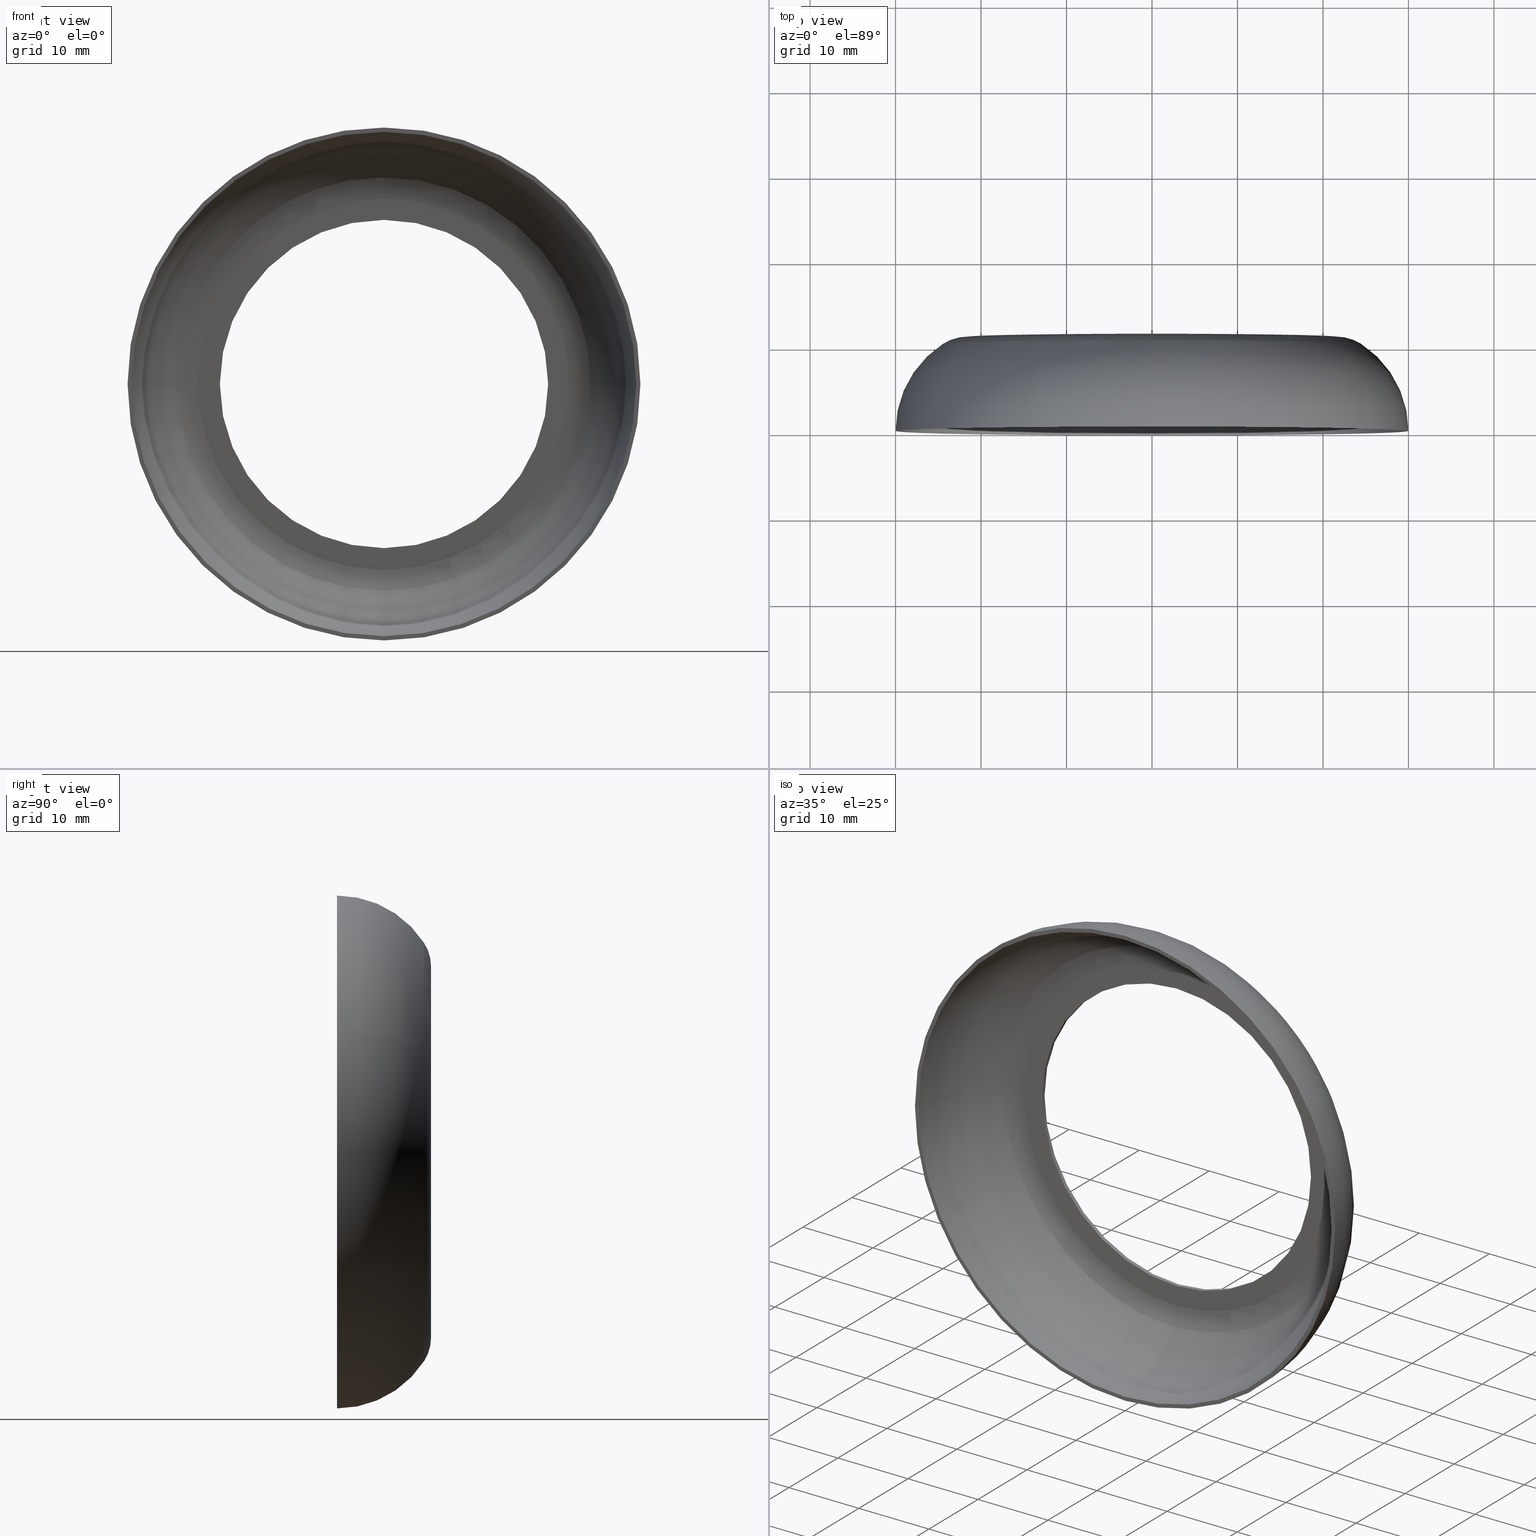
[diagram: canonical four-view strip — front | top / right | iso, engineering-drawing reading convention]
A machine part, canonical four-view strip (front | top / right | iso — engineering-drawing reading convention). The complete STEP part file that produces these views, byte-faithful:
ISO-10303-21;
HEADER;
FILE_DESCRIPTION (( 'STEP AP214' ),
    '1' );
FILE_NAME ('���. KRT506.STEP',
    '2014-06-04T08:05:20',
    ( '' ),
    ( '' ),
    'SwSTEP 2.0',
    'SolidWorks 2014',
    '' );
FILE_SCHEMA (( 'AUTOMOTIVE_DESIGN' ));
ENDSEC;

DATA;
#1 = VERTEX_POINT ( 'NONE', #88 ) ;
#2 = CIRCLE ( 'NONE', #20, 19.19999999999999900 ) ;
#3 = UNCERTAINTY_MEASURE_WITH_UNIT (LENGTH_MEASURE( 1.000000000000000100E-005 ), #101, 'distance_accuracy_value', 'NONE');
#4 = DIRECTION ( 'NONE',  ( 0.0000000000000000000, 0.0000000000000000000, 1.000000000000000000 ) ) ;
#5 = EDGE_CURVE ( 'NONE', #223, #1, #279, .T. ) ;
#6 = CIRCLE ( 'NONE', #294, 12.14285714285714200 ) ;
#7 = AXIS2_PLACEMENT_3D ( 'NONE', #57, #86, #311 ) ;
#8 = CIRCLE ( 'NONE', #284, 24.44569198360740700 ) ;
#9 = CARTESIAN_POINT ( 'NONE',  ( 0.0000000000000000000, 9.779999999999997600, 0.0000000000000000000 ) ) ;
#10 = PRODUCT_DEFINITION ( 'UNKNOWN', '', #36, #327 ) ;
#11 = CARTESIAN_POINT ( 'NONE',  ( 0.0000000000000000000, 0.0000000000000000000, -17.85714285714285800 ) ) ;
#12 = MECHANICAL_DESIGN_GEOMETRIC_PRESENTATION_REPRESENTATION (  '', ( #91 ), #255 ) ;
#13 = ORIENTED_EDGE ( 'NONE', *, *, #395, .T. ) ;
#14 = CARTESIAN_POINT ( 'NONE',  ( 0.0000000000000000000, 0.0000000000000000000, 0.0000000000000000000 ) ) ;
#15 = ORIENTED_EDGE ( 'NONE', *, *, #230, .T. ) ;
#16 = CARTESIAN_POINT ( 'NONE',  ( 0.0000000000000000000, 10.49999999999999800, -21.73275999035729800 ) ) ;
#17 = PRODUCT_CONTEXT ( 'NONE', #74, 'mechanical' ) ;
#18 = CIRCLE ( 'NONE', #26, 29.50000000000000000 ) ;
#19 = CIRCLE ( 'NONE', #387, 21.73275999035729800 ) ;
#20 = AXIS2_PLACEMENT_3D ( 'NONE', #389, #349, #140 ) ;
#21 = DIRECTION ( 'NONE',  ( 0.0000000000000000000, 0.0000000000000000000, -1.000000000000000000 ) ) ;
#22 = DIRECTION ( 'NONE',  ( -0.0000000000000000000, -1.000000000000000000, -0.0000000000000000000 ) ) ;
#23 = ADVANCED_BREP_SHAPE_REPRESENTATION ( '�. KRT506', ( #243, #109 ), #318 ) ;
#24 = ORIENTED_EDGE ( 'NONE', *, *, #124, .F. ) ;
#25 = EDGE_CURVE ( 'NONE', #285, #210, #298, .T. ) ;
#26 = AXIS2_PLACEMENT_3D ( 'NONE', #352, #332, #394 ) ;
#27 = COLOUR_RGB ( '',0.7921568627450980000, 0.8196078431372548800, 0.9333333333333333500 ) ;
#28 = ADVANCED_FACE ( 'NONE', ( #194, #334 ), #118, .T. ) ;
#29 = AXIS2_PLACEMENT_3D ( 'NONE', #65, #321, #126 ) ;
#30 = DIRECTION ( 'NONE',  ( 0.0000000000000000000, -0.0000000000000000000, 1.000000000000000000 ) ) ;
#31 = VERTEX_POINT ( 'NONE', #147 ) ;
#32 = ORIENTED_EDGE ( 'NONE', *, *, #25, .T. ) ;
#33 = PRODUCT_DEFINITION_SHAPE ( 'NONE', 'NONE',  #10 ) ;
#34 = DIRECTION ( 'NONE',  ( -0.0000000000000000000, -1.000000000000000000, -0.0000000000000000000 ) ) ;
#35 = TOROIDAL_SURFACE ( 'NONE', #342, 17.85714285714285800, 11.64285714285714200 ) ;
#36 = PRODUCT_DEFINITION_FORMATION_WITH_SPECIFIED_SOURCE ( 'ANY', '', #296, .NOT_KNOWN. ) ;
#37 = CARTESIAN_POINT ( 'NONE',  ( 0.0000000000000000000, 0.0000000000000000000, 0.0000000000000000000 ) ) ;
#38 = AXIS2_PLACEMENT_3D ( 'NONE', #264, #162, #354 ) ;
#39 = DIRECTION ( 'NONE',  ( 0.0000000000000000000, 0.0000000000000000000, -1.000000000000000000 ) ) ;
#40 = ORIENTED_EDGE ( 'NONE', *, *, #103, .T. ) ;
#41 = ORIENTED_EDGE ( 'NONE', *, *, #79, .F. ) ;
#42 = DIRECTION ( 'NONE',  ( -0.0000000000000000000, -1.000000000000000000, -0.0000000000000000000 ) ) ;
#43 = CARTESIAN_POINT ( 'NONE',  ( 0.0000000000000000000, 0.0000000000000000000, 0.0000000000000000000 ) ) ;
#44 = SURFACE_STYLE_USAGE ( .BOTH. , #125 ) ;
#45 =( NAMED_UNIT ( * ) PLANE_ANGLE_UNIT ( ) SI_UNIT ( $, .RADIAN. ) );
#46 = ORIENTED_EDGE ( 'NONE', *, *, #329, .T. ) ;
#47 = CIRCLE ( 'NONE', #398, 29.50000000000000000 ) ;
#48 = EDGE_CURVE ( 'NONE', #120, #199, #216, .T. ) ;
#49 = CARTESIAN_POINT ( 'NONE',  ( 0.0000000000000000000, 0.0000000000000000000, 0.0000000000000000000 ) ) ;
#50 = AXIS2_PLACEMENT_3D ( 'NONE', #157, #225, #193 ) ;
#51 = DIRECTION ( 'NONE',  ( 1.000000000000000000, 0.0000000000000000000, -1.224646799147353200E-016 ) ) ;
#52 = ORIENTED_EDGE ( 'NONE', *, *, #344, .T. ) ;
#53 = CARTESIAN_POINT ( 'NONE',  ( 0.0000000000000000000, 5.999999999999999100, 0.0000000000000000000 ) ) ;
#54 = ORIENTED_EDGE ( 'NONE', *, *, #117, .T. ) ;
#55 = FACE_OUTER_BOUND ( 'NONE', #308, .T. ) ;
#56 = DIRECTION ( 'NONE',  ( -0.0000000000000000000, 1.000000000000000000, -0.0000000000000000000 ) ) ;
#57 = CARTESIAN_POINT ( 'NONE',  ( 0.0000000000000000000, 10.49999999999999800, 0.0000000000000000000 ) ) ;
#58 = AXIS2_PLACEMENT_3D ( 'NONE', #37, #94, #96 ) ;
#59 = ORIENTED_EDGE ( 'NONE', *, *, #138, .F. ) ;
#60 = EDGE_LOOP ( 'NONE', ( #143, #357 ) ) ;
#61 = CARTESIAN_POINT ( 'NONE',  ( 0.0000000000000000000, 10.19999999999999800, -24.44569198360740700 ) ) ;
#62 = EDGE_LOOP ( 'NONE', ( #69, #382, #128, #59 ) ) ;
#63 = DIRECTION ( 'NONE',  ( -0.0000000000000000000, -1.000000000000000000, -0.0000000000000000000 ) ) ;
#64 = AXIS2_PLACEMENT_3D ( 'NONE', #116, #145, #280 ) ;
#65 = CARTESIAN_POINT ( 'NONE',  ( 0.0000000000000000000, 0.0000000000000000000, 0.0000000000000000000 ) ) ;
#66 = AXIS2_PLACEMENT_3D ( 'NONE', #14, #229, #156 ) ;
#67 = FILL_AREA_STYLE_COLOUR ( '', #27 ) ;
#68 = FACE_OUTER_BOUND ( 'NONE', #98, .T. ) ;
#69 = ORIENTED_EDGE ( 'NONE', *, *, #260, .F. ) ;
#70 = CARTESIAN_POINT ( 'NONE',  ( 0.0000000000000000000, 9.779999999999997600, 0.0000000000000000000 ) ) ;
#71 = ORIENTED_EDGE ( 'NONE', *, *, #230, .F. ) ;
#72 =( NAMED_UNIT ( * ) SI_UNIT ( $, .STERADIAN. ) SOLID_ANGLE_UNIT ( ) );
#73 = CARTESIAN_POINT ( 'NONE',  ( 0.0000000000000000000, 10.49999999999999800, 19.19999999999999900 ) ) ;
#74 = APPLICATION_CONTEXT ( 'automotive_design' ) ;
#75 = VERTEX_POINT ( 'NONE', #61 ) ;
#76 = CIRCLE ( 'NONE', #353, 19.19999999999999900 ) ;
#77 = ORIENTED_EDGE ( 'NONE', *, *, #329, .F. ) ;
#78 = TOROIDAL_SURFACE ( 'NONE', #179, 21.73275999035729800, 4.999999999999999100 ) ;
#79 = EDGE_CURVE ( 'NONE', #320, #180, #127, .T. ) ;
#80 = DIRECTION ( 'NONE',  ( -1.224646799147353200E-016, 0.0000000000000000000, -1.000000000000000000 ) ) ;
#81 = CARTESIAN_POINT ( 'NONE',  ( 0.0000000000000000000, 0.0000000000000000000, 0.0000000000000000000 ) ) ;
#82 = ORIENTED_EDGE ( 'NONE', *, *, #79, .T. ) ;
#83 = AXIS2_PLACEMENT_3D ( 'NONE', #176, #369, #183 ) ;
#84 = TOROIDAL_SURFACE ( 'NONE', #131, 17.85714285714285800, 11.64285714285714200 ) ;
#85 = TOROIDAL_SURFACE ( 'NONE', #173, 21.73275999035729800, 4.999999999999999100 ) ;
#86 = DIRECTION ( 'NONE',  ( -0.0000000000000000000, -1.000000000000000000, -0.0000000000000000000 ) ) ;
#87 = UNCERTAINTY_MEASURE_WITH_UNIT (LENGTH_MEASURE( 1.000000000000000100E-005 ), #343, 'distance_accuracy_value', 'NONE');
#88 = CARTESIAN_POINT ( 'NONE',  ( 2.827614669974782200E-015, 11.00000000000000000, 21.73275999035729800 ) ) ;
#89 = PRODUCT_RELATED_PRODUCT_CATEGORY ( 'part', '', ( #296 ) ) ;
#90 = EDGE_LOOP ( 'NONE', ( #77, #338, #82, #371 ) ) ;
#91 = STYLED_ITEM ( 'NONE', ( #189 ), #243 ) ;
#92 = TOROIDAL_SURFACE ( 'NONE', #276, 21.73275999035729800, 4.499999999999999100 ) ;
#93 = CIRCLE ( 'NONE', #289, 4.500000000000000900 ) ;
#94 = DIRECTION ( 'NONE',  ( 0.0000000000000000000, -1.000000000000000000, -0.0000000000000000000 ) ) ;
#95 = EDGE_CURVE ( 'NONE', #226, #199, #18, .T. ) ;
#96 = DIRECTION ( 'NONE',  ( 0.0000000000000000000, 0.0000000000000000000, -1.000000000000000000 ) ) ;
#97 = DIRECTION ( 'NONE',  ( -0.0000000000000000000, -1.000000000000000000, -0.0000000000000000000 ) ) ;
#98 = EDGE_LOOP ( 'NONE', ( #366, #376, #241, #24 ) ) ;
#99 = DIRECTION ( 'NONE',  ( -0.0000000000000000000, -1.000000000000000000, -0.0000000000000000000 ) ) ;
#100 = UNCERTAINTY_MEASURE_WITH_UNIT (LENGTH_MEASURE( 1.000000000000000100E-005 ), #233, 'distance_accuracy_value', 'NONE');
#101 =( LENGTH_UNIT ( ) NAMED_UNIT ( * ) SI_UNIT ( .MILLI., .METRE. ) );
#102 = DIRECTION ( 'NONE',  ( 0.0000000000000000000, 0.0000000000000000000, 1.000000000000000000 ) ) ;
#103 = EDGE_CURVE ( 'NONE', #320, #228, #274, .T. ) ;
#104 = CIRCLE ( 'NONE', #326, 11.64285714285714200 ) ;
#105 = CARTESIAN_POINT ( 'NONE',  ( 0.0000000000000000000, 10.19999999999999800, 0.0000000000000000000 ) ) ;
#106 = CARTESIAN_POINT ( 'NONE',  ( 0.0000000000000000000, 5.999999999999999100, -21.73275999035729800 ) ) ;
#107 = FILL_AREA_STYLE_COLOUR ( '', #121 ) ;
#108 = DIRECTION ( 'NONE',  ( -1.224646799147353200E-016, 0.0000000000000000000, -1.000000000000000000 ) ) ;
#109 = AXIS2_PLACEMENT_3D ( 'NONE', #49, #102, #164 ) ;
#110 = VERTEX_POINT ( 'NONE', #169 ) ;
#111 = ORIENTED_EDGE ( 'NONE', *, *, #305, .T. ) ;
#112 = EDGE_LOOP ( 'NONE', ( #356, #306, #208, #292 ) ) ;
#113 = CARTESIAN_POINT ( 'NONE',  ( 0.0000000000000000000, 5.999999999999999100, 0.0000000000000000000 ) ) ;
#114 = CIRCLE ( 'NONE', #29, 30.00000000000000000 ) ;
#115 = ADVANCED_FACE ( 'NONE', ( #275 ), #78, .T. ) ;
#116 = CARTESIAN_POINT ( 'NONE',  ( 0.0000000000000000000, 11.00000000000000000, 0.0000000000000000000 ) ) ;
#117 = EDGE_CURVE ( 'NONE', #1, #223, #152, .T. ) ;
#118 = PLANE ( 'NONE',  #367 ) ;
#119 = ORIENTED_EDGE ( 'NONE', *, *, #401, .F. ) ;
#120 = VERTEX_POINT ( 'NONE', #392 ) ;
#121 = COLOUR_RGB ( '',0.7921568627450980000, 0.8196078431372548800, 0.9333333333333333500 ) ;
#122 = CARTESIAN_POINT ( 'NONE',  ( 0.0000000000000000000, 0.0000000000000000000, 19.19999999999999900 ) ) ;
#123 = CIRCLE ( 'NONE', #150, 30.00000000000000000 ) ;
#124 = EDGE_CURVE ( 'NONE', #223, #75, #167, .T. ) ;
#125 = SURFACE_SIDE_STYLE ('',( #373 ) ) ;
#126 = DIRECTION ( 'NONE',  ( 0.0000000000000000000, 0.0000000000000000000, -1.000000000000000000 ) ) ;
#127 = LINE ( 'NONE', #122, #307 ) ;
#128 = ORIENTED_EDGE ( 'NONE', *, *, #222, .T. ) ;
#129 =( NAMED_UNIT ( * ) PLANE_ANGLE_UNIT ( ) SI_UNIT ( $, .RADIAN. ) );
#130 =( NAMED_UNIT ( * ) SI_UNIT ( $, .STERADIAN. ) SOLID_ANGLE_UNIT ( ) );
#131 = AXIS2_PLACEMENT_3D ( 'NONE', #43, #42, #322 ) ;
#132 = DIRECTION ( 'NONE',  ( 0.0000000000000000000, 0.0000000000000000000, -1.000000000000000000 ) ) ;
#133 = VERTEX_POINT ( 'NONE', #236 ) ;
#134 = CARTESIAN_POINT ( 'NONE',  ( 0.0000000000000000000, 11.00000000000000000, 0.0000000000000000000 ) ) ;
#135 = DIRECTION ( 'NONE',  ( 0.0000000000000000000, 0.0000000000000000000, 1.000000000000000000 ) ) ;
#136 = SURFACE_SIDE_STYLE ('',( #218 ) ) ;
#137 = DIRECTION ( 'NONE',  ( -0.0000000000000000000, -1.000000000000000000, -0.0000000000000000000 ) ) ;
#138 = EDGE_CURVE ( 'NONE', #285, #120, #93, .T. ) ;
#139 = FACE_BOUND ( 'NONE', #372, .T. ) ;
#140 = DIRECTION ( 'NONE',  ( 0.0000000000000000000, 0.0000000000000000000, 1.000000000000000000 ) ) ;
#141 = VERTEX_POINT ( 'NONE', #221 ) ;
#142 = DIRECTION ( 'NONE',  ( 0.0000000000000000000, 0.0000000000000000000, 1.000000000000000000 ) ) ;
#143 = ORIENTED_EDGE ( 'NONE', *, *, #339, .F. ) ;
#144 = AXIS2_PLACEMENT_3D ( 'NONE', #113, #253, #368 ) ;
#145 = DIRECTION ( 'NONE',  ( -0.0000000000000000000, -1.000000000000000000, -0.0000000000000000000 ) ) ;
#146 = ORIENTED_EDGE ( 'NONE', *, *, #385, .T. ) ;
#147 = CARTESIAN_POINT ( 'NONE',  ( 0.0000000000000000000, 0.0000000000000000000, -30.00000000000000000 ) ) ;
#148 = EDGE_LOOP ( 'NONE', ( #217, #254, #186, #271 ) ) ;
#149 = CARTESIAN_POINT ( 'NONE',  ( 0.0000000000000000000, 0.0000000000000000000, 0.0000000000000000000 ) ) ;
#150 = AXIS2_PLACEMENT_3D ( 'NONE', #235, #355, #207 ) ;
#151 = DIRECTION ( 'NONE',  ( 0.0000000000000000000, 0.0000000000000000000, -1.000000000000000000 ) ) ;
#152 = CIRCLE ( 'NONE', #269, 21.73275999035729800 ) ;
#153 = LINE ( 'NONE', #203, #330 ) ;
#154 = CARTESIAN_POINT ( 'NONE',  ( 2.351321854362917700E-015, 10.49999999999999800, -19.19999999999999900 ) ) ;
#155 = AXIS2_PLACEMENT_3D ( 'NONE', #370, #317, #374 ) ;
#156 = DIRECTION ( 'NONE',  ( 0.0000000000000000000, 0.0000000000000000000, 1.000000000000000000 ) ) ;
#157 = CARTESIAN_POINT ( 'NONE',  ( 2.661495495882872600E-015, 5.999999999999999100, 21.73275999035729800 ) ) ;
#158 = CLOSED_SHELL ( 'NONE', ( #250, #278, #178, #182, #312, #28, #115, #214, #277, #219, #273, #213, #177 ) ) ;
#159 = CIRCLE ( 'NONE', #38, 5.000000000000000900 ) ;
#160 = CARTESIAN_POINT ( 'NONE',  ( 0.0000000000000000000, 5.999999999999999100, 0.0000000000000000000 ) ) ;
#161 = ORIENTED_EDGE ( 'NONE', *, *, #300, .F. ) ;
#162 = DIRECTION ( 'NONE',  ( 1.000000000000000000, 0.0000000000000000000, -1.224646799147353200E-016 ) ) ;
#163 = DIRECTION ( 'NONE',  ( -0.0000000000000000000, -1.000000000000000000, -0.0000000000000000000 ) ) ;
#164 = DIRECTION ( 'NONE',  ( 1.000000000000000000, 0.0000000000000000000, 0.0000000000000000000 ) ) ;
#165 = CARTESIAN_POINT ( 'NONE',  ( 0.0000000000000000000, 11.00000000000000000, 0.0000000000000000000 ) ) ;
#166 = AXIS2_PLACEMENT_3D ( 'NONE', #106, #267, #388 ) ;
#167 = CIRCLE ( 'NONE', #166, 5.000000000000000900 ) ;
#168 = FACE_OUTER_BOUND ( 'NONE', #281, .T. ) ;
#169 = CARTESIAN_POINT ( 'NONE',  ( 3.673940397442059200E-015, 0.0000000000000000000, 30.00000000000000000 ) ) ;
#170 = DIRECTION ( 'NONE',  ( 0.0000000000000000000, 0.0000000000000000000, 1.000000000000000000 ) ) ;
#171 = EDGE_CURVE ( 'NONE', #199, #226, #47, .T. ) ;
#172 = EDGE_LOOP ( 'NONE', ( #361, #146, #399, #161 ) ) ;
#173 = AXIS2_PLACEMENT_3D ( 'NONE', #160, #22, #240 ) ;
#174 = CARTESIAN_POINT ( 'NONE',  ( 0.0000000000000000000, 5.999999999999999100, -21.73275999035729800 ) ) ;
#175 = CYLINDRICAL_SURFACE ( 'NONE', #66, 19.19999999999999900 ) ;
#176 = CARTESIAN_POINT ( 'NONE',  ( 0.0000000000000000000, 10.49999999999999800, 0.0000000000000000000 ) ) ;
#177 = ADVANCED_FACE ( 'NONE', ( #362 ), #239, .F. ) ;
#178 = ADVANCED_FACE ( 'NONE', ( #350 ), #286, .F. ) ;
#179 = AXIS2_PLACEMENT_3D ( 'NONE', #53, #137, #209 ) ;
#180 = VERTEX_POINT ( 'NONE', #282 ) ;
#181 = ORIENTED_EDGE ( 'NONE', *, *, #171, .F. ) ;
#182 = ADVANCED_FACE ( 'NONE', ( #335 ), #341, .T. ) ;
#183 = DIRECTION ( 'NONE',  ( 0.0000000000000000000, 0.0000000000000000000, 1.000000000000000000 ) ) ;
#184 = CARTESIAN_POINT ( 'NONE',  ( 0.0000000000000000000, 0.0000000000000000000, 0.0000000000000000000 ) ) ;
#185 = STYLED_ITEM ( 'NONE', ( #309 ), #23 ) ;
#186 = ORIENTED_EDGE ( 'NONE', *, *, #138, .T. ) ;
#187 = DIRECTION ( 'NONE',  ( 0.0000000000000000000, 0.0000000000000000000, 1.000000000000000000 ) ) ;
#188 = CIRCLE ( 'NONE', #333, 24.44569198360740700 ) ;
#189 = PRESENTATION_STYLE_ASSIGNMENT (( #44 ) ) ;
#190 = AXIS2_PLACEMENT_3D ( 'NONE', #313, #56, #4 ) ;
#191 = DIRECTION ( 'NONE',  ( 0.0000000000000000000, -0.0000000000000000000, 1.000000000000000000 ) ) ;
#192 = ORIENTED_EDGE ( 'NONE', *, *, #5, .F. ) ;
#193 = DIRECTION ( 'NONE',  ( -1.224646799147352700E-016, 0.0000000000000000000, -1.000000000000000000 ) ) ;
#194 = FACE_BOUND ( 'NONE', #60, .T. ) ;
#195 = CIRCLE ( 'NONE', #375, 12.14285714285714200 ) ;
#196 = DIRECTION ( 'NONE',  ( 0.0000000000000000000, 0.0000000000000000000, -1.000000000000000000 ) ) ;
#197 = CARTESIAN_POINT ( 'NONE',  ( 3.612708057484691600E-015, 0.0000000000000000000, 29.50000000000000000 ) ) ;
#198 = EDGE_CURVE ( 'NONE', #75, #315, #188, .T. ) ;
#199 = VERTEX_POINT ( 'NONE', #384 ) ;
#200 = SHAPE_DEFINITION_REPRESENTATION ( #33, #23 ) ;
#201 = APPLICATION_PROTOCOL_DEFINITION ( 'draft international standard', 'automotive_design', 1998, #74 ) ;
#202 = DIRECTION ( 'NONE',  ( 0.0000000000000000000, 1.000000000000000000, 0.0000000000000000000 ) ) ;
#203 = CARTESIAN_POINT ( 'NONE',  ( 2.351321854362917700E-015, 0.0000000000000000000, -19.19999999999999900 ) ) ;
#204 =( GEOMETRIC_REPRESENTATION_CONTEXT ( 3 ) GLOBAL_UNCERTAINTY_ASSIGNED_CONTEXT ( ( #100 ) ) GLOBAL_UNIT_ASSIGNED_CONTEXT ( ( #233, #45, #72 ) ) REPRESENTATION_CONTEXT ( 'NONE', 'WORKASPACE' ) );
#205 =( NAMED_UNIT ( * ) SI_UNIT ( $, .STERADIAN. ) SOLID_ANGLE_UNIT ( ) );
#206 = EDGE_CURVE ( 'NONE', #228, #320, #248, .T. ) ;
#207 = DIRECTION ( 'NONE',  ( 0.0000000000000000000, 0.0000000000000000000, -1.000000000000000000 ) ) ;
#208 = ORIENTED_EDGE ( 'NONE', *, *, #95, .T. ) ;
#209 = DIRECTION ( 'NONE',  ( 0.0000000000000000000, 0.0000000000000000000, -1.000000000000000000 ) ) ;
#210 = VERTEX_POINT ( 'NONE', #397 ) ;
#211 = DIRECTION ( 'NONE',  ( -1.000000000000000000, 0.0000000000000000000, 0.0000000000000000000 ) ) ;
#212 = FACE_OUTER_BOUND ( 'NONE', #112, .T. ) ;
#213 = ADVANCED_FACE ( 'NONE', ( #55 ), #35, .F. ) ;
#214 = ADVANCED_FACE ( 'NONE', ( #227 ), #265, .T. ) ;
#215 = DIRECTION ( 'NONE',  ( 0.0000000000000000000, 1.000000000000000000, 0.0000000000000000000 ) ) ;
#216 = CIRCLE ( 'NONE', #155, 11.64285714285714200 ) ;
#217 = ORIENTED_EDGE ( 'NONE', *, *, #263, .F. ) ;
#218 = SURFACE_STYLE_FILL_AREA ( #331 ) ;
#219 = ADVANCED_FACE ( 'NONE', ( #139, #257 ), #340, .F. ) ;
#220 = DIRECTION ( 'NONE',  ( 0.0000000000000000000, 1.000000000000000000, 0.0000000000000000000 ) ) ;
#221 = CARTESIAN_POINT ( 'NONE',  ( 2.351321854362917700E-015, 11.00000000000000000, -19.19999999999999900 ) ) ;
#222 = EDGE_CURVE ( 'NONE', #133, #120, #390, .T. ) ;
#223 = VERTEX_POINT ( 'NONE', #346 ) ;
#224 = CARTESIAN_POINT ( 'NONE',  ( 0.0000000000000000000, 0.0000000000000000000, 0.0000000000000000000 ) ) ;
#225 = DIRECTION ( 'NONE',  ( 1.000000000000000000, 0.0000000000000000000, -1.224646799147353200E-016 ) ) ;
#226 = VERTEX_POINT ( 'NONE', #197 ) ;
#227 = FACE_OUTER_BOUND ( 'NONE', #301, .T. ) ;
#228 = VERTEX_POINT ( 'NONE', #154 ) ;
#229 = DIRECTION ( 'NONE',  ( -0.0000000000000000000, 1.000000000000000000, -0.0000000000000000000 ) ) ;
#230 = EDGE_CURVE ( 'NONE', #110, #31, #114, .T. ) ;
#231 = FILL_AREA_STYLE ('',( #67 ) ) ;
#232 = ORIENTED_EDGE ( 'NONE', *, *, #95, .F. ) ;
#233 =( LENGTH_UNIT ( ) NAMED_UNIT ( * ) SI_UNIT ( .MILLI., .METRE. ) );
#234 = PRESENTATION_LAYER_ASSIGNMENT (  '', '', ( #185 ) ) ;
#235 = CARTESIAN_POINT ( 'NONE',  ( 0.0000000000000000000, 0.0000000000000000000, 0.0000000000000000000 ) ) ;
#236 = CARTESIAN_POINT ( 'NONE',  ( 2.960510009248309900E-015, 9.779999999999997600, 24.17439878428239600 ) ) ;
#237 = AXIS2_PLACEMENT_3D ( 'NONE', #9, #287, #381 ) ;
#238 =( NAMED_UNIT ( * ) PLANE_ANGLE_UNIT ( ) SI_UNIT ( $, .RADIAN. ) );
#239 = CYLINDRICAL_SURFACE ( 'NONE', #190, 19.19999999999999900 ) ;
#240 = DIRECTION ( 'NONE',  ( 0.0000000000000000000, 0.0000000000000000000, -1.000000000000000000 ) ) ;
#241 = ORIENTED_EDGE ( 'NONE', *, *, #198, .F. ) ;
#242 = DIRECTION ( 'NONE',  ( 0.0000000000000000000, 1.000000000000000000, 0.0000000000000000000 ) ) ;
#243 = MANIFOLD_SOLID_BREP ( '�����-��������1', #158 ) ;
#244 = DIRECTION ( 'NONE',  ( -0.0000000000000000000, -1.000000000000000000, -0.0000000000000000000 ) ) ;
#245 = ORIENTED_EDGE ( 'NONE', *, *, #252, .F. ) ;
#246 = AXIS2_PLACEMENT_3D ( 'NONE', #184, #63, #316 ) ;
#247 = MECHANICAL_DESIGN_GEOMETRIC_PRESENTATION_REPRESENTATION (  '', ( #185 ), #204 ) ;
#248 = CIRCLE ( 'NONE', #83, 19.19999999999999900 ) ;
#249 = CIRCLE ( 'NONE', #237, 24.17439878428239600 ) ;
#250 = ADVANCED_FACE ( 'NONE', ( #377 ), #175, .F. ) ;
#251 = DIRECTION ( 'NONE',  ( -0.0000000000000000000, 1.000000000000000000, -0.0000000000000000000 ) ) ;
#252 = EDGE_CURVE ( 'NONE', #120, #133, #249, .T. ) ;
#253 = DIRECTION ( 'NONE',  ( -0.0000000000000000000, -1.000000000000000000, -0.0000000000000000000 ) ) ;
#254 = ORIENTED_EDGE ( 'NONE', *, *, #25, .F. ) ;
#255 =( GEOMETRIC_REPRESENTATION_CONTEXT ( 3 ) GLOBAL_UNCERTAINTY_ASSIGNED_CONTEXT ( ( #87 ) ) GLOBAL_UNIT_ASSIGNED_CONTEXT ( ( #343, #129, #130 ) ) REPRESENTATION_CONTEXT ( 'NONE', 'WORKASPACE' ) );
#256 = FACE_BOUND ( 'NONE', #303, .T. ) ;
#257 = FACE_OUTER_BOUND ( 'NONE', #323, .T. ) ;
#258 = DIRECTION ( 'NONE',  ( -1.000000000000000000, 0.0000000000000000000, 0.0000000000000000000 ) ) ;
#259 = PLANE ( 'NONE',  #58 ) ;
#260 = EDGE_CURVE ( 'NONE', #210, #285, #19, .T. ) ;
#261 = ORIENTED_EDGE ( 'NONE', *, *, #117, .F. ) ;
#262 = DIRECTION ( 'NONE',  ( -0.0000000000000000000, -1.000000000000000000, -0.0000000000000000000 ) ) ;
#263 = EDGE_CURVE ( 'NONE', #210, #133, #266, .T. ) ;
#264 = CARTESIAN_POINT ( 'NONE',  ( 2.661495495882872600E-015, 5.999999999999999100, 21.73275999035729800 ) ) ;
#265 = TOROIDAL_SURFACE ( 'NONE', #360, 17.85714285714285800, 12.14285714285714200 ) ;
#266 = CIRCLE ( 'NONE', #50, 4.500000000000000900 ) ;
#267 = DIRECTION ( 'NONE',  ( -1.000000000000000000, 0.0000000000000000000, 0.0000000000000000000 ) ) ;
#268 = DIRECTION ( 'NONE',  ( 1.000000000000000000, 0.0000000000000000000, -1.224646799147353200E-016 ) ) ;
#269 = AXIS2_PLACEMENT_3D ( 'NONE', #165, #244, #386 ) ;
#270 = ORIENTED_EDGE ( 'NONE', *, *, #206, .F. ) ;
#271 = ORIENTED_EDGE ( 'NONE', *, *, #252, .T. ) ;
#272 = CARTESIAN_POINT ( 'NONE',  ( 0.0000000000000000000, 10.49999999999999800, 0.0000000000000000000 ) ) ;
#273 = ADVANCED_FACE ( 'NONE', ( #293 ), #92, .F. ) ;
#274 = CIRCLE ( 'NONE', #310, 19.19999999999999900 ) ;
#275 = FACE_OUTER_BOUND ( 'NONE', #396, .T. ) ;
#276 = AXIS2_PLACEMENT_3D ( 'NONE', #380, #97, #196 ) ;
#277 = ADVANCED_FACE ( 'NONE', ( #256, #168 ), #259, .T. ) ;
#278 = ADVANCED_FACE ( 'NONE', ( #212 ), #84, .F. ) ;
#279 = CIRCLE ( 'NONE', #64, 21.73275999035729800 ) ;
#280 = DIRECTION ( 'NONE',  ( 0.0000000000000000000, 0.0000000000000000000, -1.000000000000000000 ) ) ;
#281 = EDGE_LOOP ( 'NONE', ( #111, #15 ) ) ;
#282 = CARTESIAN_POINT ( 'NONE',  ( 0.0000000000000000000, 11.00000000000000000, 19.19999999999999900 ) ) ;
#283 = CARTESIAN_POINT ( 'NONE',  ( 0.0000000000000000000, 10.19999999999999800, 0.0000000000000000000 ) ) ;
#284 = AXIS2_PLACEMENT_3D ( 'NONE', #105, #262, #383 ) ;
#285 = VERTEX_POINT ( 'NONE', #16 ) ;
#286 = TOROIDAL_SURFACE ( 'NONE', #144, 21.73275999035729800, 4.499999999999999100 ) ;
#287 = DIRECTION ( 'NONE',  ( -0.0000000000000000000, -1.000000000000000000, -0.0000000000000000000 ) ) ;
#288 = EDGE_LOOP ( 'NONE', ( #270, #46, #13, #41 ) ) ;
#289 = AXIS2_PLACEMENT_3D ( 'NONE', #174, #211, #187 ) ;
#290 = ORIENTED_EDGE ( 'NONE', *, *, #300, .T. ) ;
#291 = CARTESIAN_POINT ( 'NONE',  ( 0.0000000000000000000, 10.49999999999999800, 0.0000000000000000000 ) ) ;
#292 = ORIENTED_EDGE ( 'NONE', *, *, #48, .F. ) ;
#293 = FACE_OUTER_BOUND ( 'NONE', #148, .T. ) ;
#294 = AXIS2_PLACEMENT_3D ( 'NONE', #11, #258, #170 ) ;
#295 = APPLICATION_CONTEXT ( 'automotive_design' ) ;
#296 = PRODUCT ( '���. KRT506', '���. KRT506', '', ( #17 ) ) ;
#297 = CARTESIAN_POINT ( 'NONE',  ( 2.186869284191702100E-015, 0.0000000000000000000, 17.85714285714285800 ) ) ;
#298 = CIRCLE ( 'NONE', #7, 21.73275999035729800 ) ;
#299 = ORIENTED_EDGE ( 'NONE', *, *, #171, .T. ) ;
#300 = EDGE_CURVE ( 'NONE', #75, #31, #6, .T. ) ;
#301 = EDGE_LOOP ( 'NONE', ( #304, #52, #290, #71 ) ) ;
#302 = ORIENTED_EDGE ( 'NONE', *, *, #48, .T. ) ;
#303 = EDGE_LOOP ( 'NONE', ( #181, #232 ) ) ;
#304 = ORIENTED_EDGE ( 'NONE', *, *, #385, .F. ) ;
#305 = EDGE_CURVE ( 'NONE', #31, #110, #123, .T. ) ;
#306 = ORIENTED_EDGE ( 'NONE', *, *, #358, .T. ) ;
#307 = VECTOR ( 'NONE', #251, 1000.000000000000000 ) ;
#308 = EDGE_LOOP ( 'NONE', ( #364, #245, #302, #299 ) ) ;
#309 = PRESENTATION_STYLE_ASSIGNMENT (( #347 ) ) ;
#310 = AXIS2_PLACEMENT_3D ( 'NONE', #272, #202, #142 ) ;
#311 = DIRECTION ( 'NONE',  ( 0.0000000000000000000, 0.0000000000000000000, -1.000000000000000000 ) ) ;
#312 = ADVANCED_FACE ( 'NONE', ( #68 ), #85, .T. ) ;
#313 = CARTESIAN_POINT ( 'NONE',  ( 0.0000000000000000000, 0.0000000000000000000, 0.0000000000000000000 ) ) ;
#314 = ORIENTED_EDGE ( 'NONE', *, *, #124, .T. ) ;
#315 = VERTEX_POINT ( 'NONE', #393 ) ;
#316 = DIRECTION ( 'NONE',  ( 0.0000000000000000000, 0.0000000000000000000, -1.000000000000000000 ) ) ;
#317 = DIRECTION ( 'NONE',  ( -1.000000000000000000, 0.0000000000000000000, 0.0000000000000000000 ) ) ;
#318 =( GEOMETRIC_REPRESENTATION_CONTEXT ( 3 ) GLOBAL_UNCERTAINTY_ASSIGNED_CONTEXT ( ( #3 ) ) GLOBAL_UNIT_ASSIGNED_CONTEXT ( ( #101, #238, #205 ) ) REPRESENTATION_CONTEXT ( 'NONE', 'WORKASPACE' ) );
#319 = AXIS2_PLACEMENT_3D ( 'NONE', #359, #220, #191 ) ;
#320 = VERTEX_POINT ( 'NONE', #73 ) ;
#321 = DIRECTION ( 'NONE',  ( -0.0000000000000000000, -1.000000000000000000, -0.0000000000000000000 ) ) ;
#322 = DIRECTION ( 'NONE',  ( 0.0000000000000000000, 0.0000000000000000000, -1.000000000000000000 ) ) ;
#323 = EDGE_LOOP ( 'NONE', ( #32, #365 ) ) ;
#324 = DIRECTION ( 'NONE',  ( -0.0000000000000000000, 1.000000000000000000, -0.0000000000000000000 ) ) ;
#325 = DIRECTION ( 'NONE',  ( -0.0000000000000000000, -1.000000000000000000, -0.0000000000000000000 ) ) ;
#326 = AXIS2_PLACEMENT_3D ( 'NONE', #297, #268, #80 ) ;
#327 = PRODUCT_DEFINITION_CONTEXT ( 'detailed design', #295, 'design' ) ;
#328 = APPLICATION_PROTOCOL_DEFINITION ( 'draft international standard', 'automotive_design', 1998, #295 ) ;
#329 = EDGE_CURVE ( 'NONE', #228, #141, #153, .T. ) ;
#330 = VECTOR ( 'NONE', #324, 1000.000000000000000 ) ;
#331 = FILL_AREA_STYLE ('',( #107 ) ) ;
#332 = DIRECTION ( 'NONE',  ( -0.0000000000000000000, -1.000000000000000000, -0.0000000000000000000 ) ) ;
#333 = AXIS2_PLACEMENT_3D ( 'NONE', #283, #325, #348 ) ;
#334 = FACE_OUTER_BOUND ( 'NONE', #345, .T. ) ;
#335 = FACE_OUTER_BOUND ( 'NONE', #172, .T. ) ;
#336 = AXIS2_PLACEMENT_3D ( 'NONE', #70, #379, #151 ) ;
#337 = CARTESIAN_POINT ( 'NONE',  ( 0.0000000000000000000, 11.00000000000000000, 0.0000000000000000000 ) ) ;
#338 = ORIENTED_EDGE ( 'NONE', *, *, #103, .F. ) ;
#339 = EDGE_CURVE ( 'NONE', #180, #141, #76, .T. ) ;
#340 = PLANE ( 'NONE',  #319 ) ;
#341 = TOROIDAL_SURFACE ( 'NONE', #246, 17.85714285714285800, 12.14285714285714200 ) ;
#342 = AXIS2_PLACEMENT_3D ( 'NONE', #81, #163, #132 ) ;
#343 =( LENGTH_UNIT ( ) NAMED_UNIT ( * ) SI_UNIT ( .MILLI., .METRE. ) );
#344 = EDGE_CURVE ( 'NONE', #315, #75, #8, .T. ) ;
#345 = EDGE_LOOP ( 'NONE', ( #192, #261 ) ) ;
#346 = CARTESIAN_POINT ( 'NONE',  ( 0.0000000000000000000, 11.00000000000000000, -21.73275999035729800 ) ) ;
#347 = SURFACE_STYLE_USAGE ( .BOTH. , #136 ) ;
#348 = DIRECTION ( 'NONE',  ( 0.0000000000000000000, 0.0000000000000000000, -1.000000000000000000 ) ) ;
#349 = DIRECTION ( 'NONE',  ( 0.0000000000000000000, 1.000000000000000000, 0.0000000000000000000 ) ) ;
#350 = FACE_OUTER_BOUND ( 'NONE', #62, .T. ) ;
#351 = CARTESIAN_POINT ( 'NONE',  ( 2.186869284191702100E-015, 0.0000000000000000000, 17.85714285714285800 ) ) ;
#352 = CARTESIAN_POINT ( 'NONE',  ( 0.0000000000000000000, 0.0000000000000000000, 0.0000000000000000000 ) ) ;
#353 = AXIS2_PLACEMENT_3D ( 'NONE', #134, #242, #135 ) ;
#354 = DIRECTION ( 'NONE',  ( -1.224646799147352700E-016, 0.0000000000000000000, -1.000000000000000000 ) ) ;
#355 = DIRECTION ( 'NONE',  ( -0.0000000000000000000, -1.000000000000000000, -0.0000000000000000000 ) ) ;
#356 = ORIENTED_EDGE ( 'NONE', *, *, #222, .F. ) ;
#357 = ORIENTED_EDGE ( 'NONE', *, *, #395, .F. ) ;
#358 = EDGE_CURVE ( 'NONE', #133, #226, #104, .T. ) ;
#359 = CARTESIAN_POINT ( 'NONE',  ( 0.0000000000000000000, 10.49999999999999800, 0.0000000000000000000 ) ) ;
#360 = AXIS2_PLACEMENT_3D ( 'NONE', #224, #400, #21 ) ;
#361 = ORIENTED_EDGE ( 'NONE', *, *, #198, .T. ) ;
#362 = FACE_OUTER_BOUND ( 'NONE', #90, .T. ) ;
#363 = PRESENTATION_LAYER_ASSIGNMENT (  '', '', ( #91 ) ) ;
#364 = ORIENTED_EDGE ( 'NONE', *, *, #358, .F. ) ;
#365 = ORIENTED_EDGE ( 'NONE', *, *, #260, .T. ) ;
#366 = ORIENTED_EDGE ( 'NONE', *, *, #5, .T. ) ;
#367 = AXIS2_PLACEMENT_3D ( 'NONE', #337, #215, #30 ) ;
#368 = DIRECTION ( 'NONE',  ( 0.0000000000000000000, 0.0000000000000000000, -1.000000000000000000 ) ) ;
#369 = DIRECTION ( 'NONE',  ( 0.0000000000000000000, 1.000000000000000000, 0.0000000000000000000 ) ) ;
#370 = CARTESIAN_POINT ( 'NONE',  ( 0.0000000000000000000, 0.0000000000000000000, -17.85714285714285800 ) ) ;
#371 = ORIENTED_EDGE ( 'NONE', *, *, #339, .T. ) ;
#372 = EDGE_LOOP ( 'NONE', ( #40, #378 ) ) ;
#373 = SURFACE_STYLE_FILL_AREA ( #231 ) ;
#374 = DIRECTION ( 'NONE',  ( 0.0000000000000000000, 0.0000000000000000000, 1.000000000000000000 ) ) ;
#375 = AXIS2_PLACEMENT_3D ( 'NONE', #351, #51, #108 ) ;
#376 = ORIENTED_EDGE ( 'NONE', *, *, #401, .T. ) ;
#377 = FACE_OUTER_BOUND ( 'NONE', #288, .T. ) ;
#378 = ORIENTED_EDGE ( 'NONE', *, *, #206, .T. ) ;
#379 = DIRECTION ( 'NONE',  ( -0.0000000000000000000, -1.000000000000000000, -0.0000000000000000000 ) ) ;
#380 = CARTESIAN_POINT ( 'NONE',  ( 0.0000000000000000000, 5.999999999999999100, 0.0000000000000000000 ) ) ;
#381 = DIRECTION ( 'NONE',  ( 0.0000000000000000000, 0.0000000000000000000, -1.000000000000000000 ) ) ;
#382 = ORIENTED_EDGE ( 'NONE', *, *, #263, .T. ) ;
#383 = DIRECTION ( 'NONE',  ( 0.0000000000000000000, 0.0000000000000000000, -1.000000000000000000 ) ) ;
#384 = CARTESIAN_POINT ( 'NONE',  ( 0.0000000000000000000, 0.0000000000000000000, -29.50000000000000000 ) ) ;
#385 = EDGE_CURVE ( 'NONE', #315, #110, #195, .T. ) ;
#386 = DIRECTION ( 'NONE',  ( 0.0000000000000000000, 0.0000000000000000000, -1.000000000000000000 ) ) ;
#387 = AXIS2_PLACEMENT_3D ( 'NONE', #291, #99, #39 ) ;
#388 = DIRECTION ( 'NONE',  ( 0.0000000000000000000, 0.0000000000000000000, 1.000000000000000000 ) ) ;
#389 = CARTESIAN_POINT ( 'NONE',  ( 0.0000000000000000000, 11.00000000000000000, 0.0000000000000000000 ) ) ;
#390 = CIRCLE ( 'NONE', #336, 24.17439878428239600 ) ;
#391 = ORIENTED_EDGE ( 'NONE', *, *, #344, .F. ) ;
#392 = CARTESIAN_POINT ( 'NONE',  ( 0.0000000000000000000, 9.779999999999997600, -24.17439878428239600 ) ) ;
#393 = CARTESIAN_POINT ( 'NONE',  ( 2.993733844066692300E-015, 10.19999999999999800, 24.44569198360740700 ) ) ;
#394 = DIRECTION ( 'NONE',  ( 0.0000000000000000000, 0.0000000000000000000, -1.000000000000000000 ) ) ;
#395 = EDGE_CURVE ( 'NONE', #141, #180, #2, .T. ) ;
#396 = EDGE_LOOP ( 'NONE', ( #119, #54, #314, #391 ) ) ;
#397 = CARTESIAN_POINT ( 'NONE',  ( 2.811002752565591000E-015, 10.49999999999999800, 21.73275999035729800 ) ) ;
#398 = AXIS2_PLACEMENT_3D ( 'NONE', #149, #34, #402 ) ;
#399 = ORIENTED_EDGE ( 'NONE', *, *, #305, .F. ) ;
#400 = DIRECTION ( 'NONE',  ( -0.0000000000000000000, -1.000000000000000000, -0.0000000000000000000 ) ) ;
#401 = EDGE_CURVE ( 'NONE', #1, #315, #159, .T. ) ;
#402 = DIRECTION ( 'NONE',  ( 0.0000000000000000000, 0.0000000000000000000, -1.000000000000000000 ) ) ;
ENDSEC;
END-ISO-10303-21;
